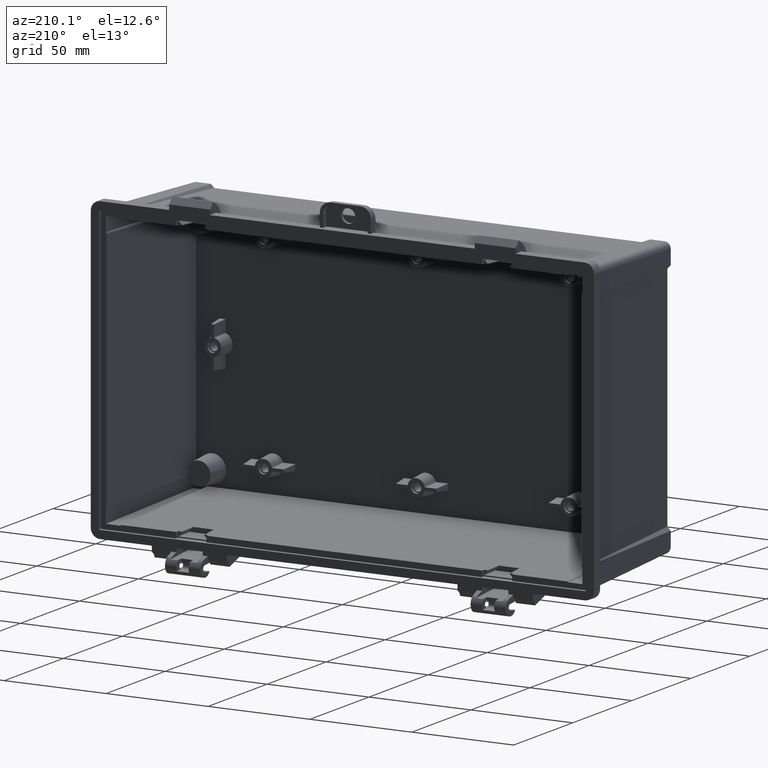
[diagram: clean part render]
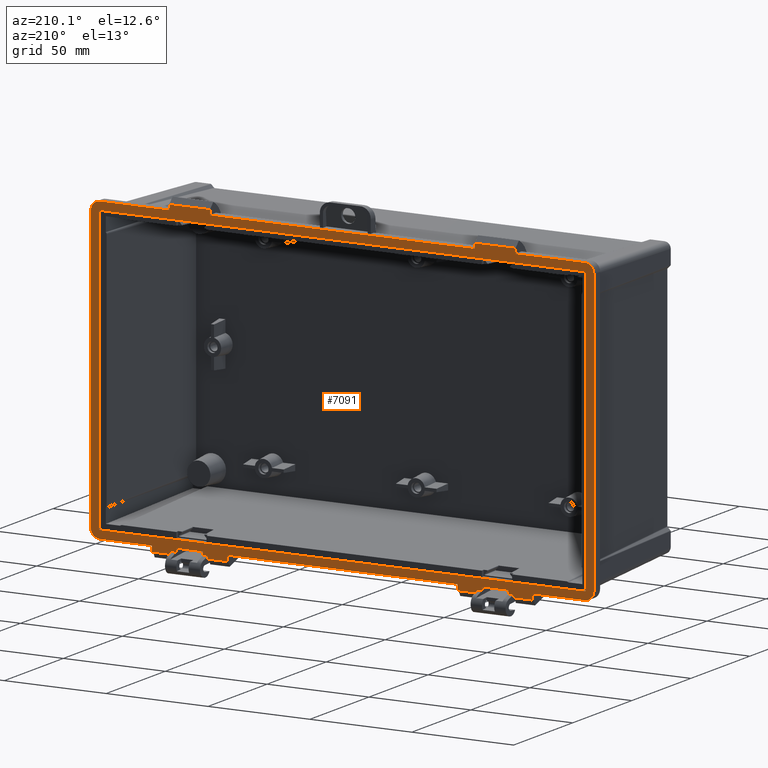
[diagram: same view with one face highlighted and labeled with its STEP entity id]
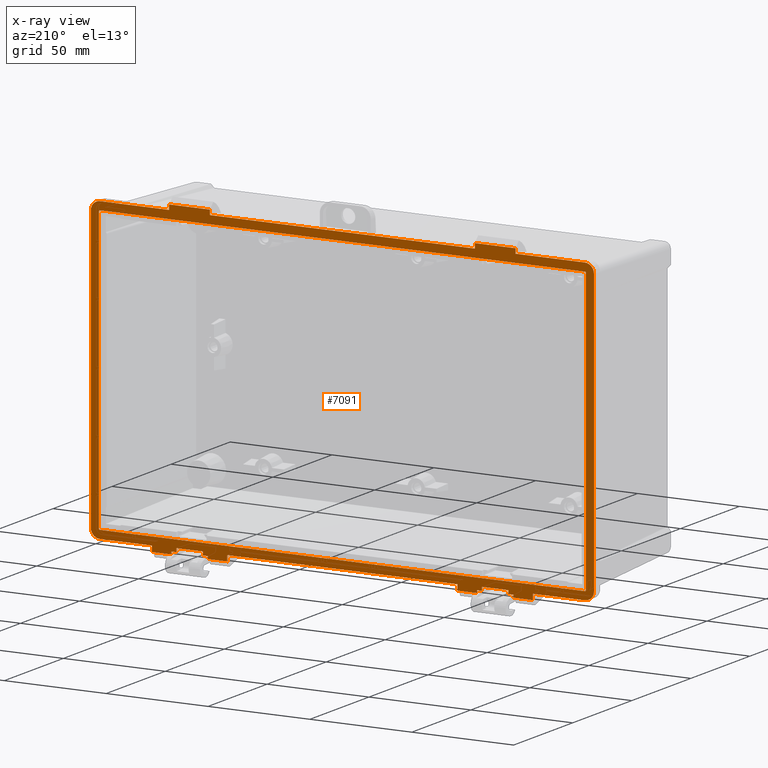
[diagram: x-ray of the same camera — body ghosted, the highlighted face saturated]
A machine part, auxiliary view. The second image highlights one B-rep face of the part: STEP entity #7091.
The next image is the same camera in x-ray: the body ghosted, the highlighted face saturated — about 0% of this face is hidden behind the body in this view.
In plain terms, the highlighted planar face has unit normal (0, 1, 0).
Its self-contained STEP definition (entity closure, byte-faithful):
#1866 = VERTEX_POINT ( 'NONE', #18991 ) ;
#1867 = VERTEX_POINT ( 'NONE', #18992 ) ;
#2029 = VERTEX_POINT ( 'NONE', #19082 ) ;
#2031 = VERTEX_POINT ( 'NONE', #19083 ) ;
#2033 = VERTEX_POINT ( 'NONE', #19084 ) ;
#2034 = VERTEX_POINT ( 'NONE', #19085 ) ;
#2077 = VERTEX_POINT ( 'NONE', #19109 ) ;
#2079 = VERTEX_POINT ( 'NONE', #19110 ) ;
#2082 = VERTEX_POINT ( 'NONE', #19111 ) ;
#2108 = VERTEX_POINT ( 'NONE', #19125 ) ;
#2109 = VERTEX_POINT ( 'NONE', #19126 ) ;
#2111 = VERTEX_POINT ( 'NONE', #19127 ) ;
#2113 = VERTEX_POINT ( 'NONE', #19128 ) ;
#2115 = VERTEX_POINT ( 'NONE', #19129 ) ;
#2117 = VERTEX_POINT ( 'NONE', #19130 ) ;
#2118 = VERTEX_POINT ( 'NONE', #19131 ) ;
#2120 = VERTEX_POINT ( 'NONE', #19132 ) ;
#2122 = VERTEX_POINT ( 'NONE', #19133 ) ;
#2123 = VERTEX_POINT ( 'NONE', #19134 ) ;
#2126 = VERTEX_POINT ( 'NONE', #19135 ) ;
#2127 = VERTEX_POINT ( 'NONE', #19136 ) ;
#2129 = VERTEX_POINT ( 'NONE', #19137 ) ;
#2131 = VERTEX_POINT ( 'NONE', #19138 ) ;
#2133 = VERTEX_POINT ( 'NONE', #19139 ) ;
#2134 = VERTEX_POINT ( 'NONE', #19140 ) ;
#2137 = VERTEX_POINT ( 'NONE', #19141 ) ;
#2138 = VERTEX_POINT ( 'NONE', #19142 ) ;
#2140 = VERTEX_POINT ( 'NONE', #19143 ) ;
#2142 = VERTEX_POINT ( 'NONE', #19144 ) ;
#2143 = VERTEX_POINT ( 'NONE', #19145 ) ;
#2145 = VERTEX_POINT ( 'NONE', #19146 ) ;
#2147 = VERTEX_POINT ( 'NONE', #19147 ) ;
#2149 = VERTEX_POINT ( 'NONE', #19148 ) ;
#2151 = VERTEX_POINT ( 'NONE', #19149 ) ;
#2153 = VERTEX_POINT ( 'NONE', #19150 ) ;
#2154 = VERTEX_POINT ( 'NONE', #19151 ) ;
#2156 = VERTEX_POINT ( 'NONE', #19152 ) ;
#2158 = VERTEX_POINT ( 'NONE', #19153 ) ;
#2160 = VERTEX_POINT ( 'NONE', #19154 ) ;
#2162 = VERTEX_POINT ( 'NONE', #19155 ) ;
#2163 = VERTEX_POINT ( 'NONE', #19156 ) ;
#2165 = VERTEX_POINT ( 'NONE', #19157 ) ;
#2167 = VERTEX_POINT ( 'NONE', #19158 ) ;
#2169 = VERTEX_POINT ( 'NONE', #19159 ) ;
#2171 = VERTEX_POINT ( 'NONE', #19160 ) ;
#2172 = VERTEX_POINT ( 'NONE', #19161 ) ;
#2174 = VERTEX_POINT ( 'NONE', #19162 ) ;
#2176 = VERTEX_POINT ( 'NONE', #19163 ) ;
#5686 = EDGE_CURVE ( 'NONE', #1867, #1866, #23252, .T. ) ;
#5814 = EDGE_CURVE ( 'NONE', #2031, #2029, #23358, .T. ) ;
#5817 = EDGE_CURVE ( 'NONE', #2033, #2034, #23361, .T. ) ;
#6181 = ORIENTED_EDGE ( 'NONE', *, *, #7150, .T. ) ;
#6182 = ORIENTED_EDGE ( 'NONE', *, *, #7151, .T. ) ;
#6183 = ORIENTED_EDGE ( 'NONE', *, *, #7149, .T. ) ;
#6184 = ORIENTED_EDGE ( 'NONE', *, *, #7152, .F. ) ;
#6185 = ORIENTED_EDGE ( 'NONE', *, *, #7153, .F. ) ;
#6186 = ORIENTED_EDGE ( 'NONE', *, *, #7154, .F. ) ;
#6187 = ORIENTED_EDGE ( 'NONE', *, *, #7155, .T. ) ;
#6188 = ORIENTED_EDGE ( 'NONE', *, *, #7156, .T. ) ;
#6189 = ORIENTED_EDGE ( 'NONE', *, *, #7157, .T. ) ;
#6190 = ORIENTED_EDGE ( 'NONE', *, *, #7158, .F. ) ;
#6191 = ORIENTED_EDGE ( 'NONE', *, *, #7159, .T. ) ;
#6192 = ORIENTED_EDGE ( 'NONE', *, *, #7160, .T. ) ;
#6193 = ORIENTED_EDGE ( 'NONE', *, *, #7161, .T. ) ;
#6194 = ORIENTED_EDGE ( 'NONE', *, *, #7162, .T. ) ;
#6195 = ORIENTED_EDGE ( 'NONE', *, *, #7163, .T. ) ;
#6196 = ORIENTED_EDGE ( 'NONE', *, *, #7164, .F. ) ;
#6197 = ORIENTED_EDGE ( 'NONE', *, *, #7165, .F. ) ;
#6198 = ORIENTED_EDGE ( 'NONE', *, *, #7166, .F. ) ;
#6199 = ORIENTED_EDGE ( 'NONE', *, *, #5817, .F. ) ;
#6200 = ORIENTED_EDGE ( 'NONE', *, *, #7167, .T. ) ;
#6201 = ORIENTED_EDGE ( 'NONE', *, *, #7169, .F. ) ;
#6202 = ORIENTED_EDGE ( 'NONE', *, *, #7168, .F. ) ;
#6203 = ORIENTED_EDGE ( 'NONE', *, *, #7070, .F. ) ;
#6204 = ORIENTED_EDGE ( 'NONE', *, *, #7170, .T. ) ;
#6205 = ORIENTED_EDGE ( 'NONE', *, *, #7172, .T. ) ;
#6206 = ORIENTED_EDGE ( 'NONE', *, *, #7171, .T. ) ;
#6207 = ORIENTED_EDGE ( 'NONE', *, *, #7173, .T. ) ;
#6208 = ORIENTED_EDGE ( 'NONE', *, *, #7174, .T. ) ;
#6209 = ORIENTED_EDGE ( 'NONE', *, *, #7175, .T. ) ;
#6210 = ORIENTED_EDGE ( 'NONE', *, *, #7176, .T. ) ;
#6211 = ORIENTED_EDGE ( 'NONE', *, *, #5814, .T. ) ;
#6212 = ORIENTED_EDGE ( 'NONE', *, *, #7177, .T. ) ;
#6213 = ORIENTED_EDGE ( 'NONE', *, *, #7179, .F. ) ;
#6214 = ORIENTED_EDGE ( 'NONE', *, *, #7178, .T. ) ;
#6215 = ORIENTED_EDGE ( 'NONE', *, *, #5686, .T. ) ;
#6216 = ORIENTED_EDGE ( 'NONE', *, *, #7180, .T. ) ;
#6217 = ORIENTED_EDGE ( 'NONE', *, *, #7182, .F. ) ;
#6218 = ORIENTED_EDGE ( 'NONE', *, *, #7181, .T. ) ;
#6219 = ORIENTED_EDGE ( 'NONE', *, *, #7183, .T. ) ;
#6220 = ORIENTED_EDGE ( 'NONE', *, *, #7185, .T. ) ;
#6221 = ORIENTED_EDGE ( 'NONE', *, *, #7186, .F. ) ;
#6222 = ORIENTED_EDGE ( 'NONE', *, *, #7187, .F. ) ;
#6223 = ORIENTED_EDGE ( 'NONE', *, *, #7184, .F. ) ;
#6224 = ORIENTED_EDGE ( 'NONE', *, *, #7188, .F. ) ;
#6225 = ORIENTED_EDGE ( 'NONE', *, *, #7189, .F. ) ;
#6226 = ORIENTED_EDGE ( 'NONE', *, *, #7190, .F. ) ;
#6227 = ORIENTED_EDGE ( 'NONE', *, *, #7191, .F. ) ;
#6228 = ORIENTED_EDGE ( 'NONE', *, *, #7192, .F. ) ;
#7070 = EDGE_CURVE ( 'NONE', #2077, #2079, #23384, .T. ) ;
#7091 = ADVANCED_FACE ( 'NONE', ( #23432, #23433 ), #32598, .T. ) ;
#7149 = EDGE_CURVE ( 'NONE', #2111, #2113, #32105, .T. ) ;
#7150 = EDGE_CURVE ( 'NONE', #2109, #2111, #33228, .T. ) ;
#7151 = EDGE_CURVE ( 'NONE', #2113, #2115, #33229, .T. ) ;
#7152 = EDGE_CURVE ( 'NONE', #2117, #2115, #33230, .T. ) ;
#7153 = EDGE_CURVE ( 'NONE', #2118, #2117, #33231, .T. ) ;
#7154 = EDGE_CURVE ( 'NONE', #2120, #2118, #33232, .T. ) ;
#7155 = EDGE_CURVE ( 'NONE', #2120, #2122, #33233, .T. ) ;
#7156 = EDGE_CURVE ( 'NONE', #2122, #2123, #33234, .T. ) ;
#7157 = EDGE_CURVE ( 'NONE', #2123, #2126, #33235, .T. ) ;
#7158 = EDGE_CURVE ( 'NONE', #2127, #2126, #33236, .T. ) ;
#7159 = EDGE_CURVE ( 'NONE', #2127, #2129, #33237, .T. ) ;
#7160 = EDGE_CURVE ( 'NONE', #2129, #2131, #33238, .T. ) ;
#7161 = EDGE_CURVE ( 'NONE', #2131, #2133, #33239, .T. ) ;
#7162 = EDGE_CURVE ( 'NONE', #2133, #2134, #33240, .T. ) ;
#7163 = EDGE_CURVE ( 'NONE', #2134, #2137, #33241, .T. ) ;
#7164 = EDGE_CURVE ( 'NONE', #2138, #2137, #33242, .T. ) ;
#7165 = EDGE_CURVE ( 'NONE', #2108, #2138, #33243, .T. ) ;
#7166 = EDGE_CURVE ( 'NONE', #2034, #2108, #33244, .T. ) ;
#7167 = EDGE_CURVE ( 'NONE', #2033, #2140, #33245, .T. ) ;
#7168 = EDGE_CURVE ( 'NONE', #2142, #2140, #33246, .T. ) ;
#7169 = EDGE_CURVE ( 'NONE', #2079, #2142, #33247, .T. ) ;
#7170 = EDGE_CURVE ( 'NONE', #2077, #2082, #33248, .T. ) ;
#7171 = EDGE_CURVE ( 'NONE', #2082, #2143, #33249, .T. ) ;
#7172 = EDGE_CURVE ( 'NONE', #2143, #2145, #33250, .T. ) ;
#7173 = EDGE_CURVE ( 'NONE', #2145, #2147, #33251, .T. ) ;
#7174 = EDGE_CURVE ( 'NONE', #2147, #2149, #32128, .T. ) ;
#7175 = EDGE_CURVE ( 'NONE', #2149, #2151, #33252, .T. ) ;
#7176 = EDGE_CURVE ( 'NONE', #2151, #2031, #32108, .T. ) ;
#7177 = EDGE_CURVE ( 'NONE', #2029, #2153, #33253, .T. ) ;
#7178 = EDGE_CURVE ( 'NONE', #2153, #2154, #33254, .T. ) ;
#7179 = EDGE_CURVE ( 'NONE', #1867, #2154, #33255, .T. ) ;
#7180 = EDGE_CURVE ( 'NONE', #1866, #2156, #33256, .T. ) ;
#7181 = EDGE_CURVE ( 'NONE', #2156, #2158, #33257, .T. ) ;
#7182 = EDGE_CURVE ( 'NONE', #2160, #2158, #33258, .T. ) ;
#7183 = EDGE_CURVE ( 'NONE', #2160, #2162, #33259, .T. ) ;
#7184 = EDGE_CURVE ( 'NONE', #2167, #2163, #33260, .T. ) ;
#7185 = EDGE_CURVE ( 'NONE', #2162, #2109, #32146, .T. ) ;
#7186 = EDGE_CURVE ( 'NONE', #2163, #2165, #32136, .T. ) ;
#7187 = EDGE_CURVE ( 'NONE', #2169, #2167, #32150, .T. ) ;
#7188 = EDGE_CURVE ( 'NONE', #2171, #2169, #33261, .T. ) ;
#7189 = EDGE_CURVE ( 'NONE', #2172, #2171, #32152, .T. ) ;
#7190 = EDGE_CURVE ( 'NONE', #2174, #2172, #33262, .T. ) ;
#7191 = EDGE_CURVE ( 'NONE', #2176, #2174, #32155, .T. ) ;
#7192 = EDGE_CURVE ( 'NONE', #2165, #2176, #33263, .T. ) ;
#18991 = CARTESIAN_POINT ( 'NONE',  ( 65.00000000000000000, 0.0000000000000000000, 73.50000000000000000 ) ) ;
#18992 = CARTESIAN_POINT ( 'NONE',  ( -65.00000000000000000, 0.0000000000000000000, 73.50000000000000000 ) ) ;
#19082 = CARTESIAN_POINT ( 'NONE',  ( -85.00000000000000000, 0.0000000000000000000, 73.50000000000000000 ) ) ;
#19083 = CARTESIAN_POINT ( 'NONE',  ( -119.0000000000000000, 0.0000000000000000000, 73.50000000000000000 ) ) ;
#19084 = CARTESIAN_POINT ( 'NONE',  ( -68.49999999999998600, 0.0000000000000000000, -75.00000000000000000 ) ) ;
#19085 = CARTESIAN_POINT ( 'NONE',  ( -66.09999999999999400, 0.0000000000000000000, -75.00000000000000000 ) ) ;
#19109 = CARTESIAN_POINT ( 'NONE',  ( -83.90000000000000600, 0.0000000000000000000, -75.00000000000000000 ) ) ;
#19110 = CARTESIAN_POINT ( 'NONE',  ( -81.49999999999998600, 0.0000000000000000000, -75.00000000000000000 ) ) ;
#19111 = CARTESIAN_POINT ( 'NONE',  ( -83.90000000000000600, 0.0000000000000000000, -76.25000000000000000 ) ) ;
#19125 = CARTESIAN_POINT ( 'NONE',  ( -66.09999999999999400, 0.0000000000000000000, -76.25000000000000000 ) ) ;
#19126 = CARTESIAN_POINT ( 'NONE',  ( 123.5000000000000300, 0.0000000000000000000, 68.99999999999995700 ) ) ;
#19127 = CARTESIAN_POINT ( 'NONE',  ( 123.5000000000000300, 0.0000000000000000000, -68.99999999999994300 ) ) ;
#19128 = CARTESIAN_POINT ( 'NONE',  ( 119.0000000000000000, 0.0000000000000000000, -73.50000000000000000 ) ) ;
#19129 = CARTESIAN_POINT ( 'NONE',  ( 93.50000000000000000, 0.0000000000000000000, -73.50000000000000000 ) ) ;
#19130 = CARTESIAN_POINT ( 'NONE',  ( 93.50000000000000000, 0.0000000000000000000, -76.25000000000000000 ) ) ;
#19131 = CARTESIAN_POINT ( 'NONE',  ( 83.90000000000000600, 0.0000000000000000000, -76.25000000000000000 ) ) ;
#19132 = CARTESIAN_POINT ( 'NONE',  ( 83.90000000000000600, 0.0000000000000000000, -75.00000000000000000 ) ) ;
#19133 = CARTESIAN_POINT ( 'NONE',  ( 81.49999999999998600, 0.0000000000000000000, -75.00000000000000000 ) ) ;
#19134 = CARTESIAN_POINT ( 'NONE',  ( 81.49999999999998600, -2.113347203399479300E-016, -73.27489935220523900 ) ) ;
#19135 = CARTESIAN_POINT ( 'NONE',  ( 68.49999999999998600, -2.113347203399479300E-016, -73.27489935220523900 ) ) ;
#19136 = CARTESIAN_POINT ( 'NONE',  ( 68.49999999999998600, 0.0000000000000000000, -75.00000000000000000 ) ) ;
#19137 = CARTESIAN_POINT ( 'NONE',  ( 66.09999999999999400, 0.0000000000000000000, -75.00000000000000000 ) ) ;
#19138 = CARTESIAN_POINT ( 'NONE',  ( 66.09999999999999400, 0.0000000000000000000, -76.25000000000000000 ) ) ;
#19139 = CARTESIAN_POINT ( 'NONE',  ( 56.49999999999999300, 0.0000000000000000000, -76.25000000000000000 ) ) ;
#19140 = CARTESIAN_POINT ( 'NONE',  ( 56.49999999999999300, 0.0000000000000000000, -73.50000000000000000 ) ) ;
#19141 = CARTESIAN_POINT ( 'NONE',  ( -56.49999999999999300, 0.0000000000000000000, -73.50000000000000000 ) ) ;
#19142 = CARTESIAN_POINT ( 'NONE',  ( -56.49999999999999300, 0.0000000000000000000, -76.25000000000000000 ) ) ;
#19143 = CARTESIAN_POINT ( 'NONE',  ( -68.49999999999998600, -2.113347203399479300E-016, -73.27489935220523900 ) ) ;
#19144 = CARTESIAN_POINT ( 'NONE',  ( -81.49999999999998600, -2.113347203399479300E-016, -73.27489935220523900 ) ) ;
#19145 = CARTESIAN_POINT ( 'NONE',  ( -93.50000000000000000, 0.0000000000000000000, -76.25000000000000000 ) ) ;
#19146 = CARTESIAN_POINT ( 'NONE',  ( -93.50000000000000000, 0.0000000000000000000, -73.50000000000000000 ) ) ;
#19147 = CARTESIAN_POINT ( 'NONE',  ( -119.0000000000000000, 0.0000000000000000000, -73.50000000000000000 ) ) ;
#19148 = CARTESIAN_POINT ( 'NONE',  ( -123.5000000000000300, 0.0000000000000000000, -68.99999999999995700 ) ) ;
#19149 = CARTESIAN_POINT ( 'NONE',  ( -123.5000000000000300, 0.0000000000000000000, 68.99999999999994300 ) ) ;
#19150 = CARTESIAN_POINT ( 'NONE',  ( -85.00000000000000000, 4.336808689942017700E-016, 75.88727532464109500 ) ) ;
#19151 = CARTESIAN_POINT ( 'NONE',  ( -65.00000000000000000, 0.0000000000000000000, 75.88727532464109500 ) ) ;
#19152 = CARTESIAN_POINT ( 'NONE',  ( 65.00000000000000000, 0.0000000000000000000, 75.88727532464109500 ) ) ;
#19153 = CARTESIAN_POINT ( 'NONE',  ( 85.00000000000000000, 0.0000000000000000000, 75.88727532464109500 ) ) ;
#19154 = CARTESIAN_POINT ( 'NONE',  ( 85.00000000000001400, 0.0000000000000000000, 73.50000000000000000 ) ) ;
#19155 = CARTESIAN_POINT ( 'NONE',  ( 118.9999999999999900, 0.0000000000000000000, 73.50000000000000000 ) ) ;
#19156 = CARTESIAN_POINT ( 'NONE',  ( 119.5000000000000300, 0.0000000000000000000, -68.99999999999994300 ) ) ;
#19157 = CARTESIAN_POINT ( 'NONE',  ( 119.0000000000000300, 0.0000000000000000000, -69.49999999999998600 ) ) ;
#19158 = CARTESIAN_POINT ( 'NONE',  ( 119.5000000000000300, 0.0000000000000000000, 68.99999999999998600 ) ) ;
#19159 = CARTESIAN_POINT ( 'NONE',  ( 118.9999999999999900, 0.0000000000000000000, 69.49999999999998600 ) ) ;
#19160 = CARTESIAN_POINT ( 'NONE',  ( -119.0000000000000300, 0.0000000000000000000, 69.49999999999998600 ) ) ;
#19161 = CARTESIAN_POINT ( 'NONE',  ( -119.5000000000000300, 0.0000000000000000000, 68.99999999999994300 ) ) ;
#19162 = CARTESIAN_POINT ( 'NONE',  ( -119.5000000000000300, 0.0000000000000000000, -68.99999999999994300 ) ) ;
#19163 = CARTESIAN_POINT ( 'NONE',  ( -118.9999999999999900, 0.0000000000000000000, -69.49999999999998600 ) ) ;
#23252 = LINE ( 'NONE', #29992, #31786 ) ;
#23358 = LINE ( 'NONE', #32363, #31926 ) ;
#23361 = LINE ( 'NONE', #32369, #31929 ) ;
#23384 = LINE ( 'NONE', #32433, #31962 ) ;
#23432 = FACE_OUTER_BOUND ( 'NONE', #47120, .T. ) ;
#23433 = FACE_BOUND ( 'NONE', #47119, .T. ) ;
#29992 = CARTESIAN_POINT ( 'NONE',  ( -119.0000000000000000, 0.0000000000000000000, 73.50000000000000000 ) ) ;
#29993 = DIRECTION ( 'NONE',  ( 1.000000000000000000, 0.0000000000000000000, 0.0000000000000000000 ) ) ;
#31786 = VECTOR ( 'NONE', #29993, 1000.000000000000000 ) ;
#31926 = VECTOR ( 'NONE', #32364, 1000.000000000000000 ) ;
#31929 = VECTOR ( 'NONE', #32370, 1000.000000000000000 ) ;
#31962 = VECTOR ( 'NONE', #32434, 1000.000000000000000 ) ;
#32023 = AXIS2_PLACEMENT_3D ( 'NONE', #32599, #32600, #32601 ) ;
#32105 = CIRCLE ( 'NONE', #32109, 4.500000000000003600 ) ;
#32108 = CIRCLE ( 'NONE', #32138, 4.500000000000003600 ) ;
#32109 = AXIS2_PLACEMENT_3D ( 'NONE', #32844, #32845, #32846 ) ;
#32110 = VECTOR ( 'NONE', #32848, 1000.000000000000000 ) ;
#32111 = VECTOR ( 'NONE', #32850, 1000.000000000000000 ) ;
#32112 = VECTOR ( 'NONE', #32852, 1000.000000000000000 ) ;
#32113 = VECTOR ( 'NONE', #32854, 1000.000000000000000 ) ;
#32114 = VECTOR ( 'NONE', #32856, 1000.000000000000000 ) ;
#32115 = VECTOR ( 'NONE', #32858, 1000.000000000000000 ) ;
#32116 = VECTOR ( 'NONE', #32860, 1000.000000000000000 ) ;
#32117 = VECTOR ( 'NONE', #32862, 1000.000000000000000 ) ;
#32118 = VECTOR ( 'NONE', #32864, 1000.000000000000000 ) ;
#32119 = VECTOR ( 'NONE', #32866, 1000.000000000000000 ) ;
#32120 = VECTOR ( 'NONE', #32868, 1000.000000000000000 ) ;
#32121 = VECTOR ( 'NONE', #32870, 1000.000000000000000 ) ;
#32122 = VECTOR ( 'NONE', #32872, 1000.000000000000000 ) ;
#32123 = VECTOR ( 'NONE', #32874, 1000.000000000000000 ) ;
#32124 = VECTOR ( 'NONE', #32876, 1000.000000000000000 ) ;
#32125 = VECTOR ( 'NONE', #32878, 1000.000000000000000 ) ;
#32126 = VECTOR ( 'NONE', #32880, 1000.000000000000000 ) ;
#32127 = VECTOR ( 'NONE', #32882, 1000.000000000000000 ) ;
#32128 = CIRCLE ( 'NONE', #32135, 4.500000000000003600 ) ;
#32129 = VECTOR ( 'NONE', #32884, 1000.000000000000000 ) ;
#32130 = VECTOR ( 'NONE', #32886, 1000.000000000000000 ) ;
#32131 = VECTOR ( 'NONE', #32888, 1000.000000000000000 ) ;
#32132 = VECTOR ( 'NONE', #32890, 1000.000000000000000 ) ;
#32133 = VECTOR ( 'NONE', #32892, 1000.000000000000000 ) ;
#32134 = VECTOR ( 'NONE', #32894, 1000.000000000000000 ) ;
#32135 = AXIS2_PLACEMENT_3D ( 'NONE', #32895, #32896, #32897 ) ;
#32136 = CIRCLE ( 'NONE', #32149, 0.5000000000000004400 ) ;
#32137 = VECTOR ( 'NONE', #32899, 1000.000000000000000 ) ;
#32138 = AXIS2_PLACEMENT_3D ( 'NONE', #32900, #32901, #32902 ) ;
#32139 = VECTOR ( 'NONE', #32904, 1000.000000000000000 ) ;
#32140 = VECTOR ( 'NONE', #32906, 1000.000000000000000 ) ;
#32141 = VECTOR ( 'NONE', #32908, 1000.000000000000000 ) ;
#32142 = VECTOR ( 'NONE', #32910, 1000.000000000000000 ) ;
#32143 = VECTOR ( 'NONE', #32912, 1000.000000000000000 ) ;
#32144 = VECTOR ( 'NONE', #32914, 1000.000000000000000 ) ;
#32145 = VECTOR ( 'NONE', #32916, 1000.000000000000000 ) ;
#32146 = CIRCLE ( 'NONE', #32148, 4.500000000000003600 ) ;
#32147 = VECTOR ( 'NONE', #32918, 1000.000000000000000 ) ;
#32148 = AXIS2_PLACEMENT_3D ( 'NONE', #32919, #32920, #32921 ) ;
#32149 = AXIS2_PLACEMENT_3D ( 'NONE', #32922, #32923, #32924 ) ;
#32150 = CIRCLE ( 'NONE', #32151, 0.5000000000000004400 ) ;
#32151 = AXIS2_PLACEMENT_3D ( 'NONE', #32925, #32926, #32927 ) ;
#32152 = CIRCLE ( 'NONE', #32154, 0.5000000000000004400 ) ;
#32153 = VECTOR ( 'NONE', #32929, 1000.000000000000000 ) ;
#32154 = AXIS2_PLACEMENT_3D ( 'NONE', #32930, #32931, #32932 ) ;
#32155 = CIRCLE ( 'NONE', #32157, 0.5000000000000004400 ) ;
#32156 = VECTOR ( 'NONE', #32934, 1000.000000000000000 ) ;
#32157 = AXIS2_PLACEMENT_3D ( 'NONE', #32935, #32936, #32937 ) ;
#32158 = VECTOR ( 'NONE', #32939, 1000.000000000000000 ) ;
#32363 = CARTESIAN_POINT ( 'NONE',  ( -119.0000000000000000, 0.0000000000000000000, 73.50000000000000000 ) ) ;
#32364 = DIRECTION ( 'NONE',  ( 1.000000000000000000, 0.0000000000000000000, 0.0000000000000000000 ) ) ;
#32369 = CARTESIAN_POINT ( 'NONE',  ( -93.50000000000000000, 0.0000000000000000000, -75.00000000000000000 ) ) ;
#32370 = DIRECTION ( 'NONE',  ( 1.000000000000000000, -0.0000000000000000000, -0.0000000000000000000 ) ) ;
#32433 = CARTESIAN_POINT ( 'NONE',  ( -93.50000000000000000, 0.0000000000000000000, -75.00000000000000000 ) ) ;
#32434 = DIRECTION ( 'NONE',  ( 1.000000000000000000, -0.0000000000000000000, -0.0000000000000000000 ) ) ;
#32598 = PLANE ( 'NONE',  #32023 ) ;
#32599 = CARTESIAN_POINT ( 'NONE',  ( -119.0000000000000300, 0.0000000000000000000, -68.99999999999998600 ) ) ;
#32600 = DIRECTION ( 'NONE',  ( 0.0000000000000000000, 1.000000000000000000, 0.0000000000000000000 ) ) ;
#32601 = DIRECTION ( 'NONE',  ( 0.0000000000000000000, -0.0000000000000000000, 1.000000000000000000 ) ) ;
#32844 = CARTESIAN_POINT ( 'NONE',  ( 119.0000000000000300, 0.0000000000000000000, -68.99999999999998600 ) ) ;
#32845 = DIRECTION ( 'NONE',  ( 0.0000000000000000000, 1.000000000000000000, 0.0000000000000000000 ) ) ;
#32846 = DIRECTION ( 'NONE',  ( 0.0000000000000000000, 0.0000000000000000000, 1.000000000000000000 ) ) ;
#32847 = CARTESIAN_POINT ( 'NONE',  ( 123.5000000000000300, 0.0000000000000000000, 68.99999999999995700 ) ) ;
#32848 = DIRECTION ( 'NONE',  ( 0.0000000000000000000, 0.0000000000000000000, -1.000000000000000000 ) ) ;
#32849 = CARTESIAN_POINT ( 'NONE',  ( 119.0000000000000000, 0.0000000000000000000, -73.50000000000000000 ) ) ;
#32850 = DIRECTION ( 'NONE',  ( -1.000000000000000000, 0.0000000000000000000, 0.0000000000000000000 ) ) ;
#32851 = CARTESIAN_POINT ( 'NONE',  ( 93.50000000000000000, 0.0000000000000000000, -70.17476357177412200 ) ) ;
#32852 = DIRECTION ( 'NONE',  ( -0.0000000000000000000, -0.0000000000000000000, 1.000000000000000000 ) ) ;
#32853 = CARTESIAN_POINT ( 'NONE',  ( 83.90000000000000600, 0.0000000000000000000, -76.25000000000000000 ) ) ;
#32854 = DIRECTION ( 'NONE',  ( 1.000000000000000000, -0.0000000000000000000, -0.0000000000000000000 ) ) ;
#32855 = CARTESIAN_POINT ( 'NONE',  ( 83.90000000000000600, 0.0000000000000000000, -75.00000000000000000 ) ) ;
#32856 = DIRECTION ( 'NONE',  ( 0.0000000000000000000, 0.0000000000000000000, -1.000000000000000000 ) ) ;
#32857 = CARTESIAN_POINT ( 'NONE',  ( 93.50000000000000000, 0.0000000000000000000, -75.00000000000000000 ) ) ;
#32858 = DIRECTION ( 'NONE',  ( -1.000000000000000000, -0.0000000000000000000, -0.0000000000000000000 ) ) ;
#32859 = CARTESIAN_POINT ( 'NONE',  ( 81.49999999999998600, 0.0000000000000000000, -75.00000000000000000 ) ) ;
#32860 = DIRECTION ( 'NONE',  ( 0.0000000000000000000, -1.225057335698662200E-016, 1.000000000000000000 ) ) ;
#32861 = CARTESIAN_POINT ( 'NONE',  ( 78.00000000000000000, 0.0000000000000000000, -73.27489935220523900 ) ) ;
#32862 = DIRECTION ( 'NONE',  ( -1.000000000000000000, 0.0000000000000000000, 0.0000000000000000000 ) ) ;
#32863 = CARTESIAN_POINT ( 'NONE',  ( 68.49999999999998600, 0.0000000000000000000, -75.00000000000000000 ) ) ;
#32864 = DIRECTION ( 'NONE',  ( 0.0000000000000000000, -1.225057335698662200E-016, 1.000000000000000000 ) ) ;
#32865 = CARTESIAN_POINT ( 'NONE',  ( 93.50000000000000000, 0.0000000000000000000, -75.00000000000000000 ) ) ;
#32866 = DIRECTION ( 'NONE',  ( -1.000000000000000000, -0.0000000000000000000, -0.0000000000000000000 ) ) ;
#32867 = CARTESIAN_POINT ( 'NONE',  ( 66.09999999999999400, 0.0000000000000000000, -75.00000000000000000 ) ) ;
#32868 = DIRECTION ( 'NONE',  ( 0.0000000000000000000, 0.0000000000000000000, -1.000000000000000000 ) ) ;
#32869 = CARTESIAN_POINT ( 'NONE',  ( 66.09999999999999400, 0.0000000000000000000, -76.25000000000000000 ) ) ;
#32870 = DIRECTION ( 'NONE',  ( -1.000000000000000000, -0.0000000000000000000, -0.0000000000000000000 ) ) ;
#32871 = CARTESIAN_POINT ( 'NONE',  ( 56.49999999999999300, 0.0000000000000000000, -70.17476357177412200 ) ) ;
#32872 = DIRECTION ( 'NONE',  ( -0.0000000000000000000, -0.0000000000000000000, 1.000000000000000000 ) ) ;
#32873 = CARTESIAN_POINT ( 'NONE',  ( 119.0000000000000000, 0.0000000000000000000, -73.50000000000000000 ) ) ;
#32874 = DIRECTION ( 'NONE',  ( -1.000000000000000000, 0.0000000000000000000, 0.0000000000000000000 ) ) ;
#32875 = CARTESIAN_POINT ( 'NONE',  ( -56.49999999999999300, 0.0000000000000000000, -70.17476357177412200 ) ) ;
#32876 = DIRECTION ( 'NONE',  ( 0.0000000000000000000, 0.0000000000000000000, 1.000000000000000000 ) ) ;
#32877 = CARTESIAN_POINT ( 'NONE',  ( -66.09999999999999400, 0.0000000000000000000, -76.25000000000000000 ) ) ;
#32878 = DIRECTION ( 'NONE',  ( 1.000000000000000000, -0.0000000000000000000, -0.0000000000000000000 ) ) ;
#32879 = CARTESIAN_POINT ( 'NONE',  ( -66.09999999999999400, 0.0000000000000000000, -75.00000000000000000 ) ) ;
#32880 = DIRECTION ( 'NONE',  ( 0.0000000000000000000, 0.0000000000000000000, -1.000000000000000000 ) ) ;
#32881 = CARTESIAN_POINT ( 'NONE',  ( -68.49999999999998600, 0.0000000000000000000, -75.00000000000000000 ) ) ;
#32882 = DIRECTION ( 'NONE',  ( 0.0000000000000000000, -1.225057335698662200E-016, 1.000000000000000000 ) ) ;
#32883 = CARTESIAN_POINT ( 'NONE',  ( -78.00000000000000000, 0.0000000000000000000, -73.27489935220523900 ) ) ;
#32884 = DIRECTION ( 'NONE',  ( 1.000000000000000000, 0.0000000000000000000, 0.0000000000000000000 ) ) ;
#32885 = CARTESIAN_POINT ( 'NONE',  ( -81.49999999999998600, 0.0000000000000000000, -75.00000000000000000 ) ) ;
#32886 = DIRECTION ( 'NONE',  ( 0.0000000000000000000, -1.225057335698662200E-016, 1.000000000000000000 ) ) ;
#32887 = CARTESIAN_POINT ( 'NONE',  ( -83.90000000000000600, 0.0000000000000000000, -75.00000000000000000 ) ) ;
#32888 = DIRECTION ( 'NONE',  ( 0.0000000000000000000, 0.0000000000000000000, -1.000000000000000000 ) ) ;
#32889 = CARTESIAN_POINT ( 'NONE',  ( -83.90000000000000600, 0.0000000000000000000, -76.25000000000000000 ) ) ;
#32890 = DIRECTION ( 'NONE',  ( -1.000000000000000000, -0.0000000000000000000, -0.0000000000000000000 ) ) ;
#32891 = CARTESIAN_POINT ( 'NONE',  ( -93.50000000000000000, 0.0000000000000000000, -70.17476357177412200 ) ) ;
#32892 = DIRECTION ( 'NONE',  ( 0.0000000000000000000, 0.0000000000000000000, 1.000000000000000000 ) ) ;
#32893 = CARTESIAN_POINT ( 'NONE',  ( 119.0000000000000000, 0.0000000000000000000, -73.50000000000000000 ) ) ;
#32894 = DIRECTION ( 'NONE',  ( -1.000000000000000000, 0.0000000000000000000, 0.0000000000000000000 ) ) ;
#32895 = CARTESIAN_POINT ( 'NONE',  ( -119.0000000000000300, 0.0000000000000000000, -68.99999999999998600 ) ) ;
#32896 = DIRECTION ( 'NONE',  ( 0.0000000000000000000, 1.000000000000000000, 0.0000000000000000000 ) ) ;
#32897 = DIRECTION ( 'NONE',  ( 0.0000000000000000000, 0.0000000000000000000, 1.000000000000000000 ) ) ;
#32898 = CARTESIAN_POINT ( 'NONE',  ( -123.5000000000000300, 0.0000000000000000000, -68.99999999999995700 ) ) ;
#32899 = DIRECTION ( 'NONE',  ( 0.0000000000000000000, 0.0000000000000000000, 1.000000000000000000 ) ) ;
#32900 = CARTESIAN_POINT ( 'NONE',  ( -119.0000000000000300, 0.0000000000000000000, 68.99999999999998600 ) ) ;
#32901 = DIRECTION ( 'NONE',  ( 0.0000000000000000000, 1.000000000000000000, 0.0000000000000000000 ) ) ;
#32902 = DIRECTION ( 'NONE',  ( 0.0000000000000000000, 0.0000000000000000000, 1.000000000000000000 ) ) ;
#32903 = CARTESIAN_POINT ( 'NONE',  ( -85.00000000000000000, 0.0000000000000000000, 79.58727532464108400 ) ) ;
#32904 = DIRECTION ( 'NONE',  ( 0.0000000000000000000, 0.0000000000000000000, 1.000000000000000000 ) ) ;
#32905 = CARTESIAN_POINT ( 'NONE',  ( -119.0000000000000300, 0.0000000000000000000, 75.88727532464108100 ) ) ;
#32906 = DIRECTION ( 'NONE',  ( 1.000000000000000000, 0.0000000000000000000, -0.0000000000000000000 ) ) ;
#32907 = CARTESIAN_POINT ( 'NONE',  ( -65.00000000000000000, 0.0000000000000000000, 79.58727532464108400 ) ) ;
#32908 = DIRECTION ( 'NONE',  ( 0.0000000000000000000, 0.0000000000000000000, 1.000000000000000000 ) ) ;
#32909 = CARTESIAN_POINT ( 'NONE',  ( 65.00000000000000000, 0.0000000000000000000, 79.58727532464108400 ) ) ;
#32910 = DIRECTION ( 'NONE',  ( -0.0000000000000000000, -0.0000000000000000000, 1.000000000000000000 ) ) ;
#32911 = CARTESIAN_POINT ( 'NONE',  ( 85.00000000000000000, 0.0000000000000000000, 75.88727532464109500 ) ) ;
#32912 = DIRECTION ( 'NONE',  ( 1.000000000000000000, 0.0000000000000000000, 0.0000000000000000000 ) ) ;
#32913 = CARTESIAN_POINT ( 'NONE',  ( 85.00000000000000000, 0.0000000000000000000, 79.58727532464108400 ) ) ;
#32914 = DIRECTION ( 'NONE',  ( -0.0000000000000000000, -0.0000000000000000000, 1.000000000000000000 ) ) ;
#32915 = CARTESIAN_POINT ( 'NONE',  ( -119.0000000000000000, 0.0000000000000000000, 73.50000000000000000 ) ) ;
#32916 = DIRECTION ( 'NONE',  ( 1.000000000000000000, 0.0000000000000000000, 0.0000000000000000000 ) ) ;
#32917 = CARTESIAN_POINT ( 'NONE',  ( 119.5000000000000300, 0.0000000000000000000, 68.99999999999998600 ) ) ;
#32918 = DIRECTION ( 'NONE',  ( 0.0000000000000000000, 0.0000000000000000000, -1.000000000000000000 ) ) ;
#32919 = CARTESIAN_POINT ( 'NONE',  ( 119.0000000000000300, 0.0000000000000000000, 68.99999999999998600 ) ) ;
#32920 = DIRECTION ( 'NONE',  ( 0.0000000000000000000, 1.000000000000000000, 0.0000000000000000000 ) ) ;
#32921 = DIRECTION ( 'NONE',  ( 0.0000000000000000000, 0.0000000000000000000, 1.000000000000000000 ) ) ;
#32922 = CARTESIAN_POINT ( 'NONE',  ( 119.0000000000000300, 0.0000000000000000000, -68.99999999999998600 ) ) ;
#32923 = DIRECTION ( 'NONE',  ( 0.0000000000000000000, 1.000000000000000000, 0.0000000000000000000 ) ) ;
#32924 = DIRECTION ( 'NONE',  ( 0.0000000000000000000, 0.0000000000000000000, 1.000000000000000000 ) ) ;
#32925 = CARTESIAN_POINT ( 'NONE',  ( 119.0000000000000300, 0.0000000000000000000, 68.99999999999998600 ) ) ;
#32926 = DIRECTION ( 'NONE',  ( 0.0000000000000000000, 1.000000000000000000, 0.0000000000000000000 ) ) ;
#32927 = DIRECTION ( 'NONE',  ( 0.0000000000000000000, 0.0000000000000000000, 1.000000000000000000 ) ) ;
#32928 = CARTESIAN_POINT ( 'NONE',  ( -119.0000000000000300, 0.0000000000000000000, 69.49999999999998600 ) ) ;
#32929 = DIRECTION ( 'NONE',  ( 1.000000000000000000, 0.0000000000000000000, 0.0000000000000000000 ) ) ;
#32930 = CARTESIAN_POINT ( 'NONE',  ( -119.0000000000000300, 0.0000000000000000000, 68.99999999999998600 ) ) ;
#32931 = DIRECTION ( 'NONE',  ( 0.0000000000000000000, 1.000000000000000000, 0.0000000000000000000 ) ) ;
#32932 = DIRECTION ( 'NONE',  ( 0.0000000000000000000, 0.0000000000000000000, 1.000000000000000000 ) ) ;
#32933 = CARTESIAN_POINT ( 'NONE',  ( -119.5000000000000300, 0.0000000000000000000, -68.99999999999994300 ) ) ;
#32934 = DIRECTION ( 'NONE',  ( 0.0000000000000000000, 0.0000000000000000000, 1.000000000000000000 ) ) ;
#32935 = CARTESIAN_POINT ( 'NONE',  ( -119.0000000000000300, 0.0000000000000000000, -68.99999999999998600 ) ) ;
#32936 = DIRECTION ( 'NONE',  ( 0.0000000000000000000, 1.000000000000000000, 0.0000000000000000000 ) ) ;
#32937 = DIRECTION ( 'NONE',  ( 0.0000000000000000000, 0.0000000000000000000, 1.000000000000000000 ) ) ;
#32938 = CARTESIAN_POINT ( 'NONE',  ( 119.0000000000000300, 0.0000000000000000000, -69.49999999999998600 ) ) ;
#32939 = DIRECTION ( 'NONE',  ( -1.000000000000000000, 0.0000000000000000000, 0.0000000000000000000 ) ) ;
#33228 = LINE ( 'NONE', #32847, #32110 ) ;
#33229 = LINE ( 'NONE', #32849, #32111 ) ;
#33230 = LINE ( 'NONE', #32851, #32112 ) ;
#33231 = LINE ( 'NONE', #32853, #32113 ) ;
#33232 = LINE ( 'NONE', #32855, #32114 ) ;
#33233 = LINE ( 'NONE', #32857, #32115 ) ;
#33234 = LINE ( 'NONE', #32859, #32116 ) ;
#33235 = LINE ( 'NONE', #32861, #32117 ) ;
#33236 = LINE ( 'NONE', #32863, #32118 ) ;
#33237 = LINE ( 'NONE', #32865, #32119 ) ;
#33238 = LINE ( 'NONE', #32867, #32120 ) ;
#33239 = LINE ( 'NONE', #32869, #32121 ) ;
#33240 = LINE ( 'NONE', #32871, #32122 ) ;
#33241 = LINE ( 'NONE', #32873, #32123 ) ;
#33242 = LINE ( 'NONE', #32875, #32124 ) ;
#33243 = LINE ( 'NONE', #32877, #32125 ) ;
#33244 = LINE ( 'NONE', #32879, #32126 ) ;
#33245 = LINE ( 'NONE', #32881, #32127 ) ;
#33246 = LINE ( 'NONE', #32883, #32129 ) ;
#33247 = LINE ( 'NONE', #32885, #32130 ) ;
#33248 = LINE ( 'NONE', #32887, #32131 ) ;
#33249 = LINE ( 'NONE', #32889, #32132 ) ;
#33250 = LINE ( 'NONE', #32891, #32133 ) ;
#33251 = LINE ( 'NONE', #32893, #32134 ) ;
#33252 = LINE ( 'NONE', #32898, #32137 ) ;
#33253 = LINE ( 'NONE', #32903, #32139 ) ;
#33254 = LINE ( 'NONE', #32905, #32140 ) ;
#33255 = LINE ( 'NONE', #32907, #32141 ) ;
#33256 = LINE ( 'NONE', #32909, #32142 ) ;
#33257 = LINE ( 'NONE', #32911, #32143 ) ;
#33258 = LINE ( 'NONE', #32913, #32144 ) ;
#33259 = LINE ( 'NONE', #32915, #32145 ) ;
#33260 = LINE ( 'NONE', #32917, #32147 ) ;
#33261 = LINE ( 'NONE', #32928, #32153 ) ;
#33262 = LINE ( 'NONE', #32933, #32156 ) ;
#33263 = LINE ( 'NONE', #32938, #32158 ) ;
#47119 = EDGE_LOOP ( 'NONE', ( #6221, #6223, #6222, #6224, #6225, #6226, #6227, #6228 ) ) ;
#47120 = EDGE_LOOP ( 'NONE', ( #6181, #6183, #6182, #6184, #6185, #6186, #6187, #6188, #6189, #6190, #6191, #6192, #6193, #6194, #6195, #6196, #6197, #6198, #6199, #6200, #6202, #6201, #6203, #6204, #6206, #6205, #6207, #6208, #6209, #6210, #6211, #6212, #6214, #6213, #6215, #6216, #6218, #6217, #6219, #6220 ) ) ;